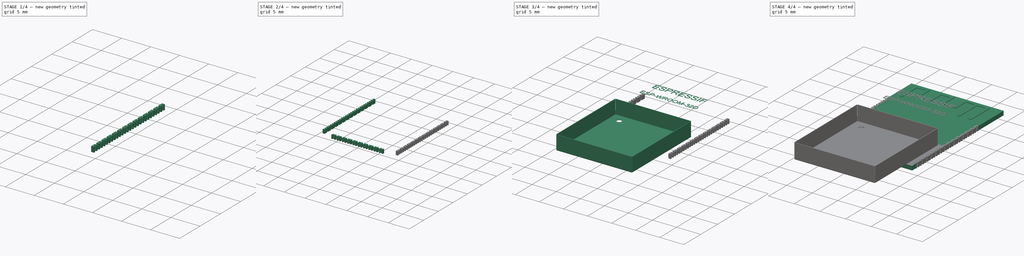
[diagram: build sequence overview — one tinted view per stage of 4, left to right]
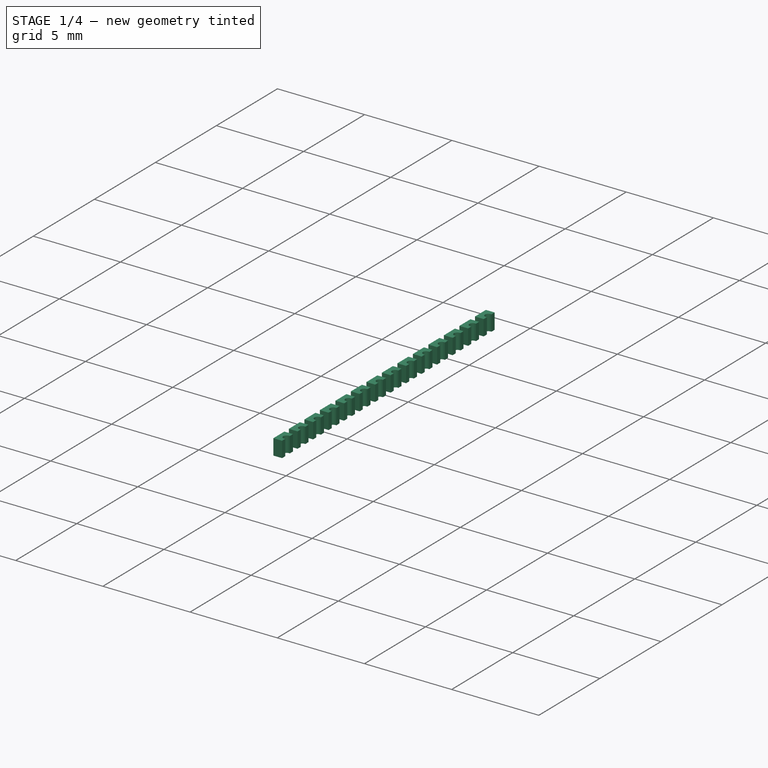
[diagram: stage 1 of 4 — iso view after this stage's code; geometry added in this stage tinted green]
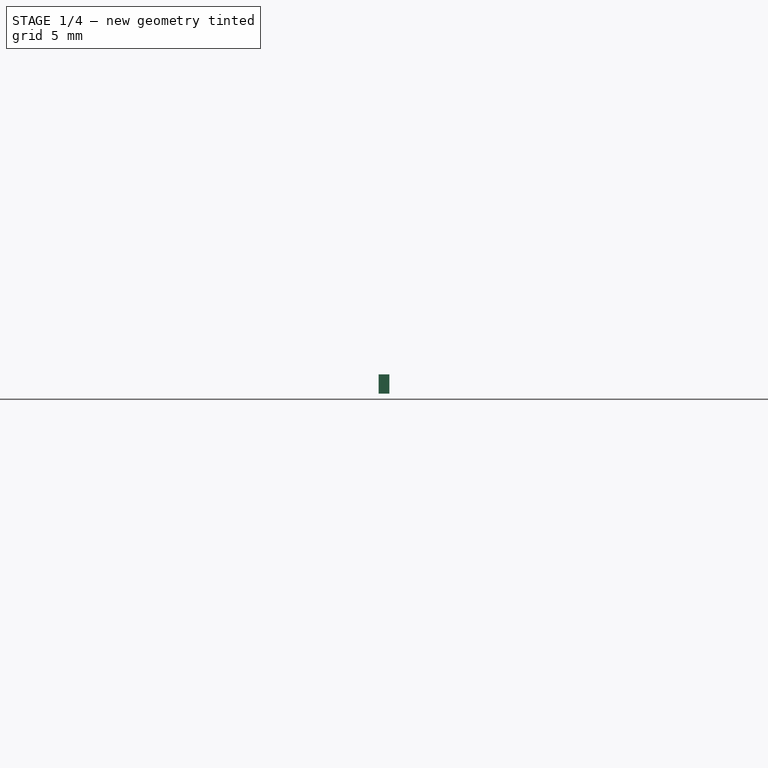
[diagram: stage 1 of 4 — front view after this stage's code; geometry added in this stage tinted green]
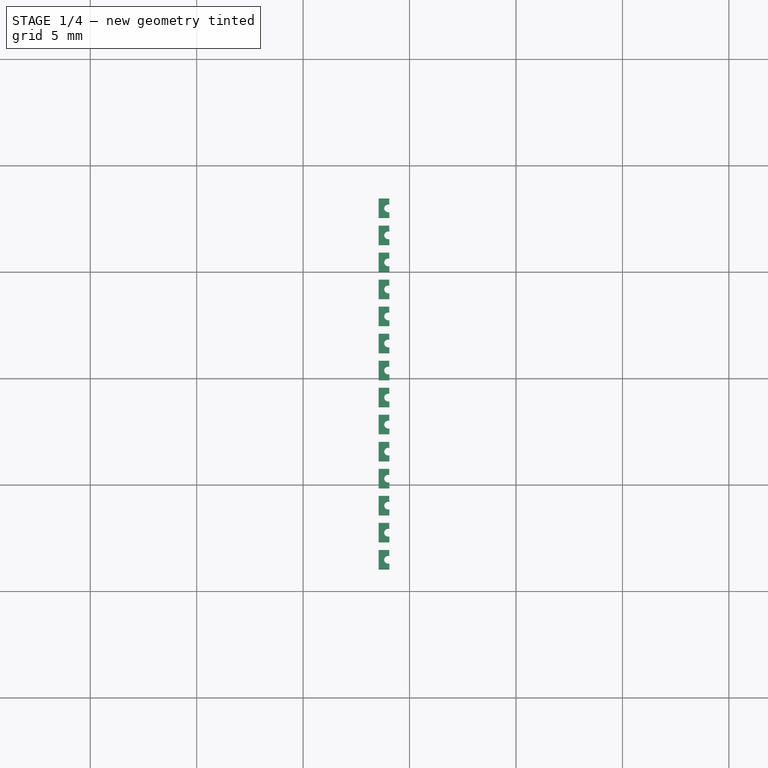
[diagram: stage 1 of 4 — top view after this stage's code; geometry added in this stage tinted green]
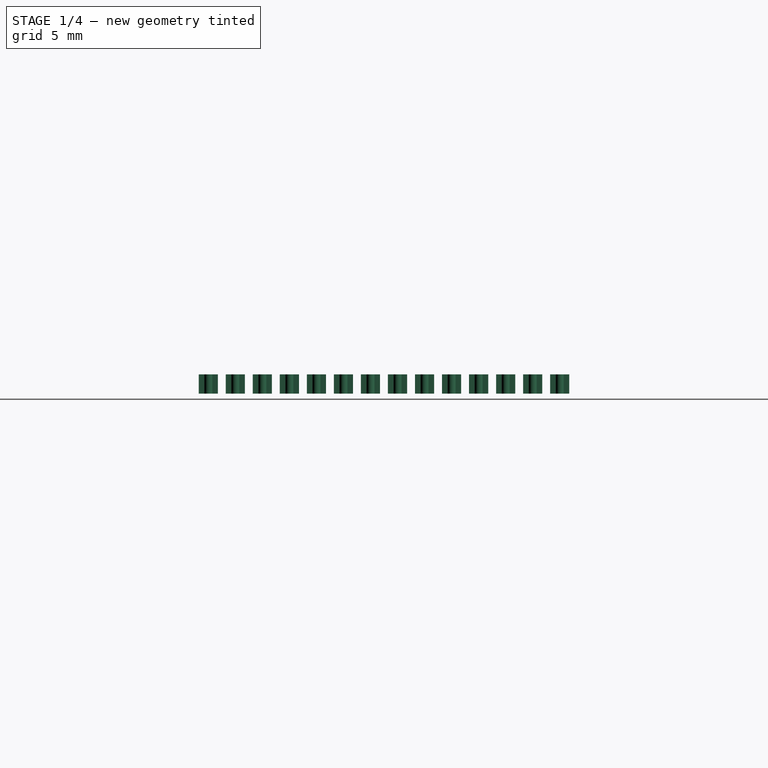
[diagram: stage 1 of 4 — right view after this stage's code; geometry added in this stage tinted green]
FCSTD DOCUMENT  (FreeCAD 1.0R39109 (Git))
Label: esp32_wr_32D_module
License: All rights reserved
LicenseURL: http://en.wikipedia.org/wiki/All_rights_reserved
objects: Sketcher::SketchObject×5, Part::FeaturePython×5, PartDesign::Pad×3, PartDesign::Body×3, PartDesign::Pocket×2, Part::Part2DObjectPython×2, Part::Extrusion×2, Image::ImagePlane×1, PartDesign::FeaturePython×1
note: 36 computed .brp shape members not serialized (recipe doc carries the construction recipe); baked Part::Feature solids carry a one-line shape summary decoded from their .brp

FEATURE [Sketcher::SketchObject] Sketch004
  ArcFitTolerance = 1e-06
  AttachmentSupport = -> [XY_Plane003]
  FullyConstrained = false
  MakeInternals = false
  MapMode = 5
  sketch-geometry (9):
    g0: LineSegment StartX=-6.16608 StartY=-0.05 StartZ=0 EndX=-5.90719 EndY=-0.05 EndZ=0
    g1: LineSegment StartX=-5.26608 StartY=-0.0452686 StartZ=0 EndX=-5.26608 EndY=0.45 EndZ=0
    g2: LineSegment StartX=-5.26608 StartY=0.45 StartZ=0 EndX=-6.16608 EndY=0.45 EndZ=0
    g3: LineSegment StartX=-6.16608 StartY=0.45 StartZ=0 EndX=-6.16608 EndY=-0.05 EndZ=0
    g4: LineSegment [constr] StartX=-5.71633 StartY=0 StartZ=0 EndX=-5.71904 EndY=0.515386 EndZ=0
    g5: ArcOfCircle CenterX=-5.71633 CenterY=0 CenterZ=0 NormalX=0 NormalY=0 NormalZ=1 AngleXU=0 Radius=0.190866 StartAngle=0 EndAngle=3.14159
    g6: LineSegment StartX=-5.52546 StartY=0 StartZ=0 EndX=-5.52546 EndY=-0.05 EndZ=0
    g7: LineSegment StartX=-5.90719 StartY=0 StartZ=0 EndX=-5.90719 EndY=-0.05 EndZ=0
    g8: LineSegment StartX=-5.52546 StartY=-0.05 StartZ=0 EndX=-5.26608 EndY=-0.0452686 EndZ=0
  constraints (24):
    c: Coincident(g8,g1)
    c: Coincident(g1,g2)
    c: Coincident(g2,g3)
    c: Coincident(g3,g0)
    c: Horizontal(g0)
    c: Horizontal(g2)
    c: Vertical(g1)
    c: Vertical(g3)
    c: DistanceX(g0,g8) = 0.9
    c: Symmetric(g0,g8,g4)
    c: DistanceY(g0,g4) = 0.05
    c: DistanceY(g3,g3) = 0.5
    c: PointOnObject(g4,g-1)
    c: Coincident(g5,g4)
    c: PointOnObject(g5,g-1)
    c: PointOnObject(g5,g-1)
    c: Coincident(g6,g5)
    c: PointOnObject(g6,g8)
    c: Vertical(g6)
    c: Coincident(g7,g5)
    c: Vertical(g7)
    c: Coincident(g0,g7)
    c: PointOnObject(g8,g6)
    c: Horizontal(g0,g6)
FEATURE [PartDesign::Pad] Pad002
  Direction = (0,0,1)
  Length = 0.05
  Length2 = 0.85
  Profile = -> Sketch004
  ReferenceAxis = -> Sketch004 [N_Axis]
  Refine = true
  Suppressed = false
  Type = 4
FEATURE [Part::FeaturePython] Clone001  label="pin_003"  # Draft clone (typed FeaturePython)
  AttacherType = Attacher::AttachEngine3D
  Fuse = false
  Objects = -> [Body003]
  Placement = pos=(9,7.2,0) rot=(0,0,1;1.5708rad)
  Scale = (1,1,1)
FEATURE [Part::FeaturePython] Array002  label="Pins_Right"  # Draft array (typed FeaturePython)
  AlwaysSyncPlacement = false
  Angle = 360
  ArrayType = 0
  Axis = (0,0,1)
  Base = -> Clone001
  Center = (0,0,0)
  Count = 14
  ExpandArray = false
  Fuse = false
  IntervalAxis = (0,0,0)
  IntervalX = (100,0,0)
  IntervalY = (0,1.27,0)
  IntervalZ = (0,0,100)
  NumberCircles = 3
  NumberPolar = 5
  NumberX = 1
  NumberY = 14
  NumberZ = 1
  PlacementList = 14 placements: arithmetic series from (9,7.2,0) step (0,1.27,0) to (9,23.71,0)
  RadialDistance = 50
  ScaleList = (14) [(1,1,1),(1,1,1),(1,1,1),(1,1,1),(1,1,1),(1,1,1),(1,1,1),(1,1,1),(1,1,1),(1,1,1),(1,1,1),(1,1,1),(1,1,1),(1,1,1)]
  Symmetry = 1
  TangentialDistance = 25
note: 2 file-system paths scrubbed to <path> (originals preserved in the JSON sidecar)
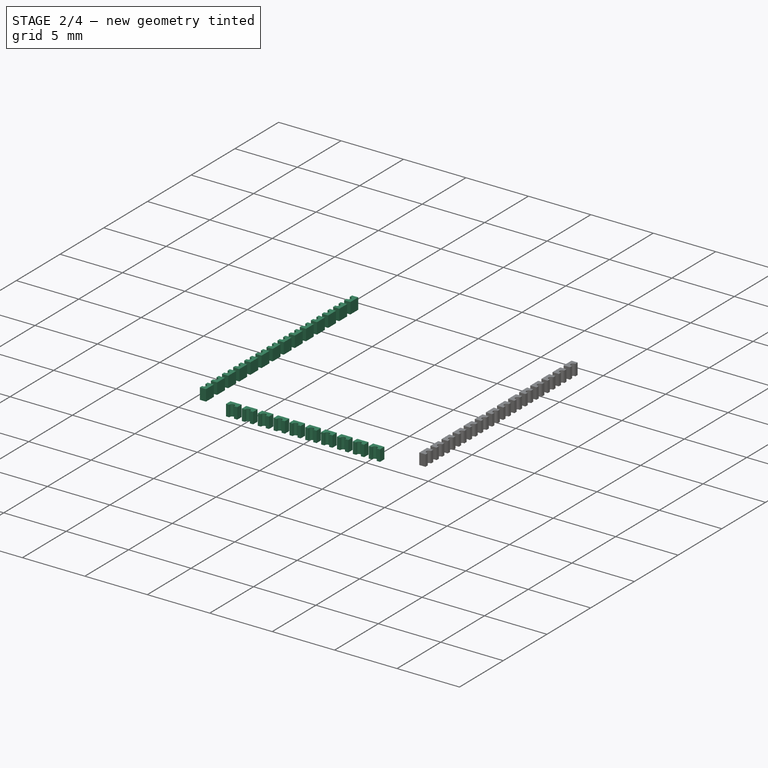
[diagram: stage 2 of 4 — iso view after this stage's code; geometry added in this stage tinted green]
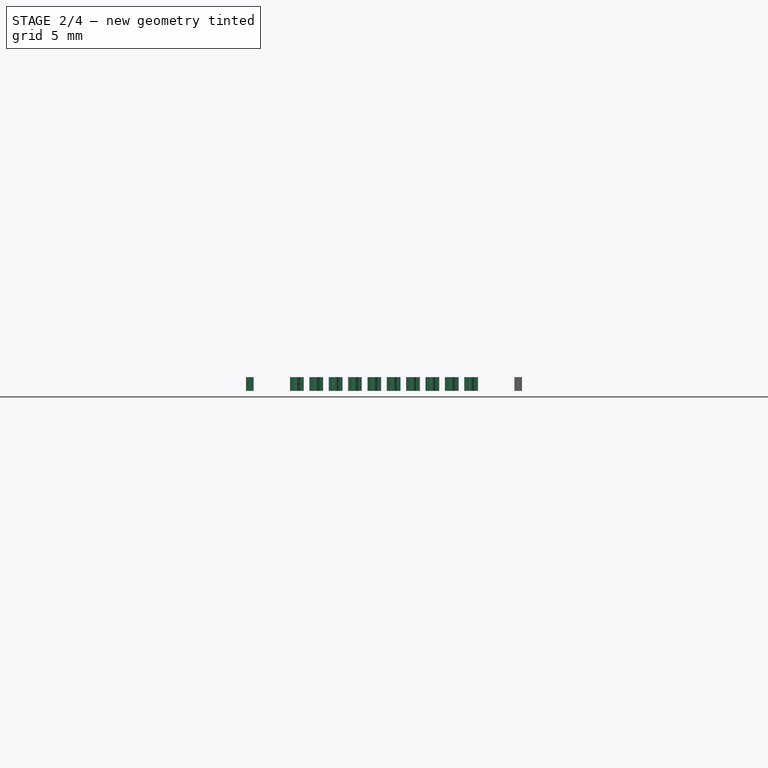
[diagram: stage 2 of 4 — front view after this stage's code; geometry added in this stage tinted green]
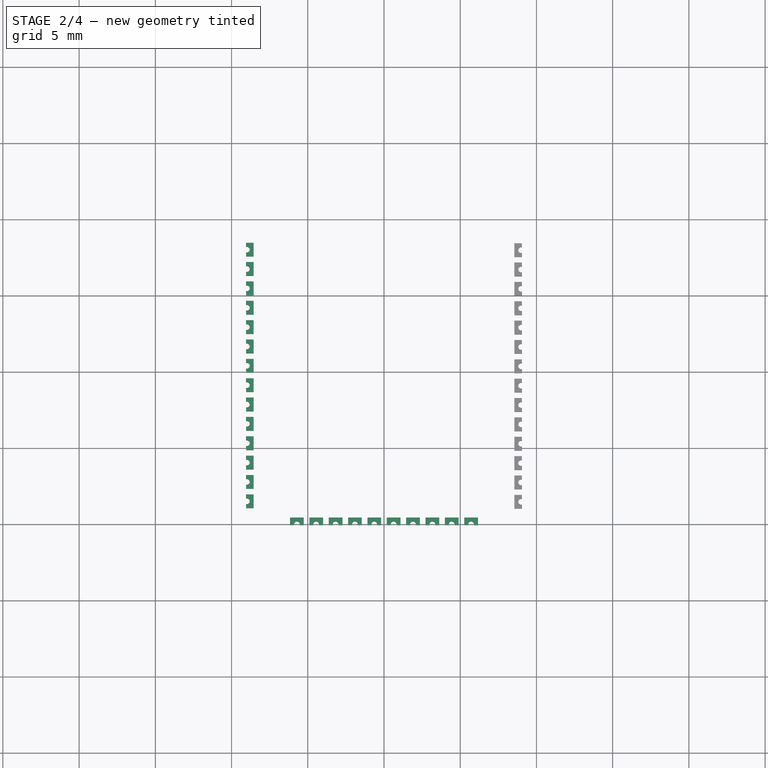
[diagram: stage 2 of 4 — top view after this stage's code; geometry added in this stage tinted green]
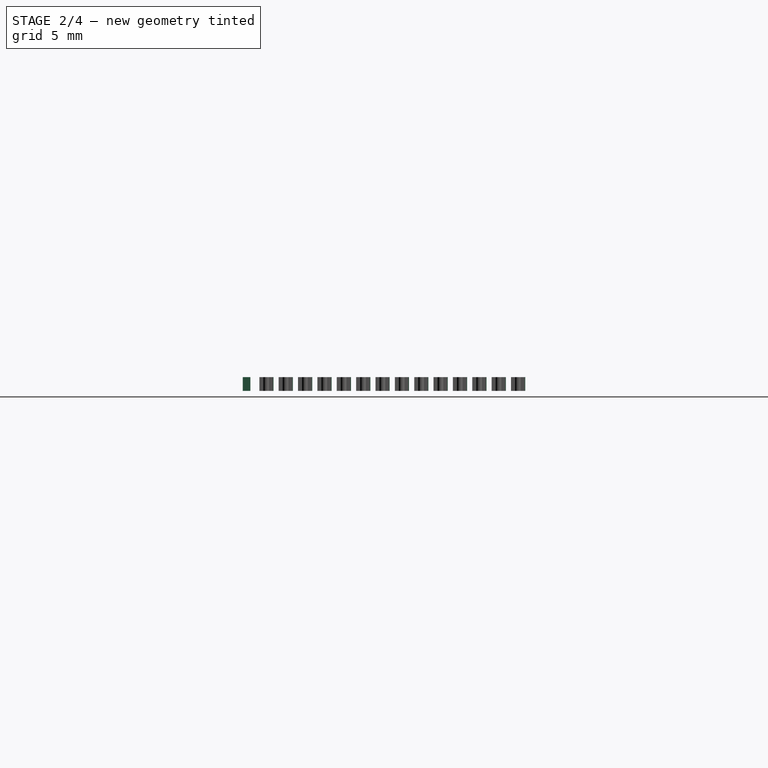
[diagram: stage 2 of 4 — right view after this stage's code; geometry added in this stage tinted green]
FEATURE [PartDesign::Body] Body003  label="pin_001"
  AllowCompound = false
  Group = -> [Sketch004,Pad002]
  Origin = -> Origin003
  Tip = -> Pad002
FEATURE [Part::FeaturePython] Array  label="Pins_H"  # Draft array (typed FeaturePython)
  AlwaysSyncPlacement = false
  Angle = 360
  ArrayType = 0
  Axis = (0,0,1)
  Base = -> Body003
  Center = (0,0,0)
  Count = 10
  ExpandArray = false
  Fuse = false
  IntervalAxis = (0,0,0)
  IntervalX = (1.27,0,0)
  IntervalY = (0,100,0)
  IntervalZ = (0,0,100)
  NumberCircles = 3
  NumberPolar = 5
  NumberX = 10
  NumberY = 1
  NumberZ = 1
  PlacementList = 10 placements: arithmetic series from (0,0,0) step (1.27,0,0) to (11.43,0,0)
  RadialDistance = 50
  ScaleList = (10) [(1,1,1),(1,1,1),(1,1,1),(1,1,1),(1,1,1),(1,1,1),(1,1,1),(1,1,1),(1,1,1),(1,1,1)]
  Symmetry = 1
  TangentialDistance = 25
FEATURE [Part::FeaturePython] Clone  label="pin_002"  # Draft clone (typed FeaturePython)
  AttacherType = Attacher::AttachEngine3D
  Fuse = false
  Objects = -> [Body003]
  Placement = pos=(-9,-4.2,0) rot=(0,0,1;4.71239rad)
  Scale = (1,1,1)
FEATURE [Part::FeaturePython] Array001  label="Pins_Left"  # Draft array (typed FeaturePython)
  AlwaysSyncPlacement = false
  Angle = 360
  ArrayType = 0
  Axis = (0,0,1)
  Base = -> Clone
  Center = (0,0,0)
  Count = 14
  ExpandArray = false
  Fuse = false
  IntervalAxis = (0,0,0)
  IntervalX = (100,0,0)
  IntervalY = (0,1.27,0)
  IntervalZ = (0,0,100)
  NumberCircles = 3
  NumberPolar = 5
  NumberX = 1
  NumberY = 14
  NumberZ = 1
  PlacementList = 14 placements: arithmetic series from (-9,-4.2,0) step (0,1.27,0) to (-9,12.31,0)
  RadialDistance = 50
  ScaleList = (14) [(1,1,1),(1,1,1),(1,1,1),(1,1,1),(1,1,1),(1,1,1),(1,1,1),(1,1,1),(1,1,1),(1,1,1),(1,1,1),(1,1,1),(1,1,1),(1,1,1)]
  Symmetry = 1
  TangentialDistance = 25
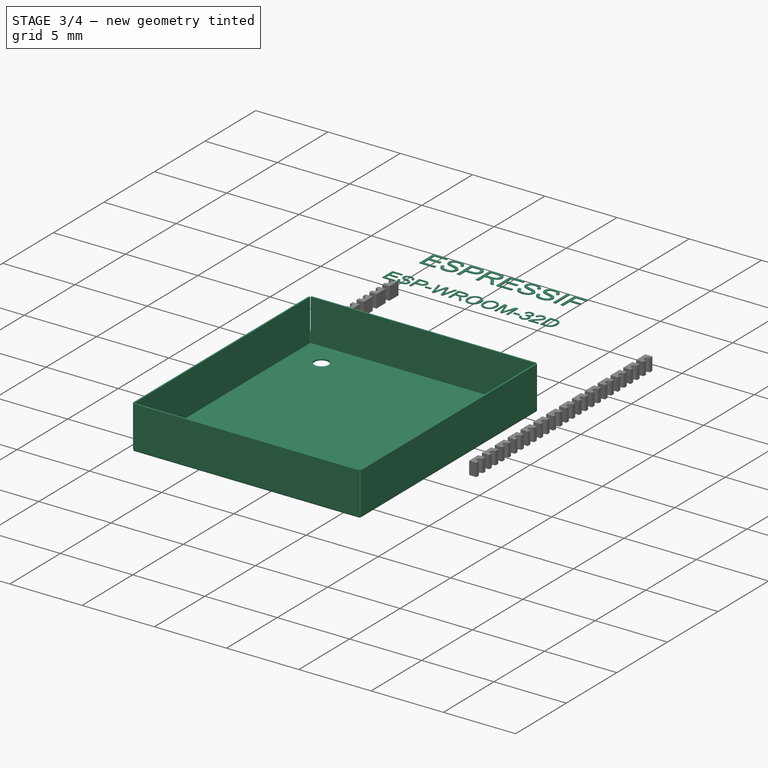
[diagram: stage 3 of 4 — iso view after this stage's code; geometry added in this stage tinted green]
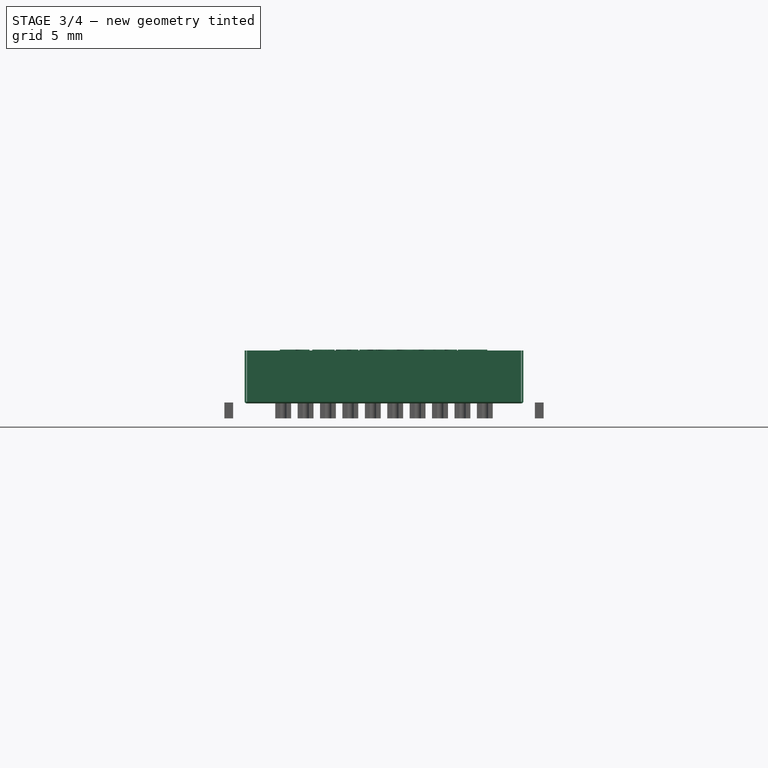
[diagram: stage 3 of 4 — front view after this stage's code; geometry added in this stage tinted green]
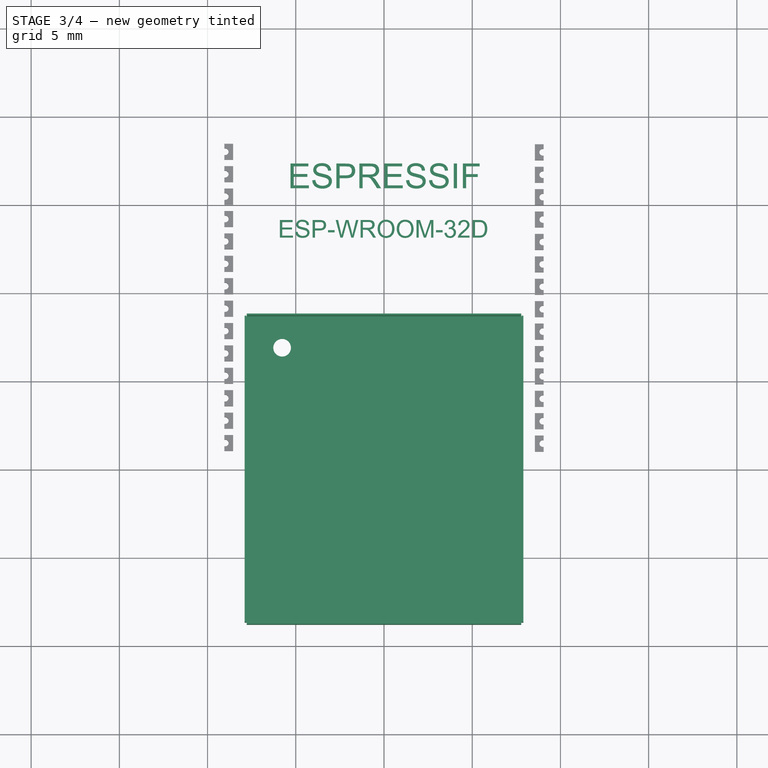
[diagram: stage 3 of 4 — top view after this stage's code; geometry added in this stage tinted green]
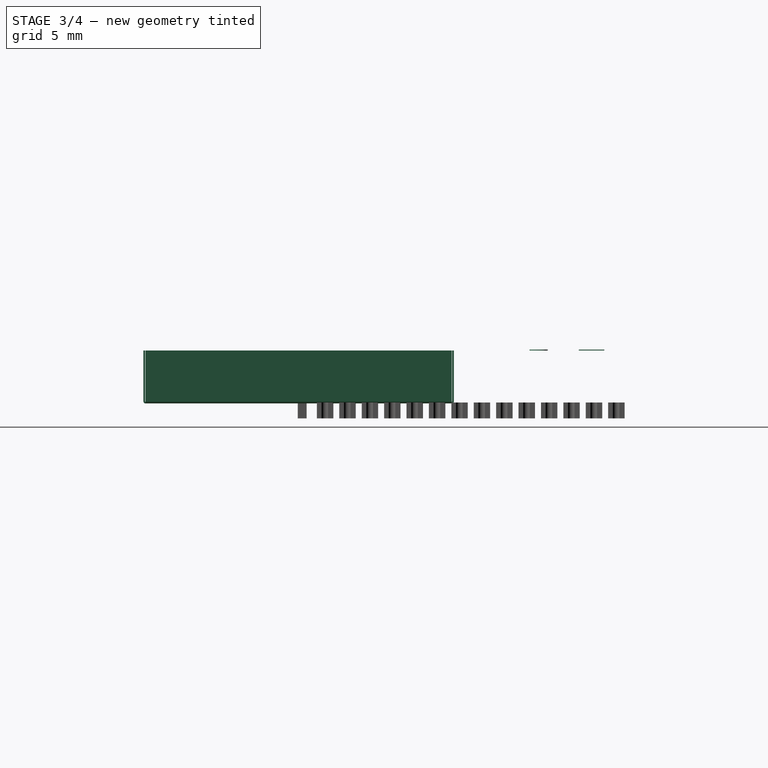
[diagram: stage 3 of 4 — right view after this stage's code; geometry added in this stage tinted green]
FEATURE [PartDesign::Body] Body  label="PCB_mince"
  AllowCompound = false
  Group = -> [Sketch,Pad,Sketch001,Pocket,Sketch002,Pad001]
  Origin = -> Origin
  Tip = -> Pad001
FEATURE [PartDesign::FeaturePython] BaseShape  # WARN: FeaturePython — macro-defined, semantics opaque (R4)
  Suppressed = false
  fillGaps = false
  flangeWidth = 0.001
  height = 3
  length = 15.8
  originLoc = 4
  radius = 0.02
  shapeType = 3
  thickness = 0.1
  width = 17.6
FEATURE [Sketcher::SketchObject] Sketch003
  ArcFitTolerance = 1e-06
  AttachmentSupport = -> [BaseShape]
  FullyConstrained = false
  MakeInternals = false
  MapMode = 5
  Placement = pos=(0,0,0) rot=(1,0,0;3.14159rad)
  sketch-geometry (1):
    g0: Circle CenterX=-5.7744 CenterY=-6.91063 CenterZ=0 NormalX=0 NormalY=0 NormalZ=1 AngleXU=0 Radius=0.5
  constraints (1):
    c: Diameter(g0) = 1
FEATURE [PartDesign::Pocket] Pocket001
  BaseFeature = -> BaseShape
  Direction = (0,0,1)
  Length = 0.5
  Length2 = 5
  Profile = -> Sketch003
  ReferenceAxis = -> Sketch003 [N_Axis]
  Refine = true
  Suppressed = false
  Type = 0
FEATURE [PartDesign::Body] Body001  label="Box"
  AllowCompound = false
  Group = -> [BaseShape,Sketch003,Pocket001]
  Origin = -> Origin001
  Placement = pos=(0,10,3) rot=(1,0,0;3.14159rad)
  Tip = -> Pocket001
FEATURE [Part::Part2DObjectPython] ShapeString  # Draft 2D object (typed FeaturePython)
  FontFile = <path>
  Fuse = false
  Justification = 6
  JustificationReference = 0
  KeepLeftMargin = false
  MakeFace = true
  ObliqueAngle = 0
  ScaleToSize = true
  Size = 1
  String = ESP-WROOM-32D
  Tracking = 0
FEATURE [Part::Extrusion] Extrude  label="Text_ESP32"
  Base = -> ShapeString
  Dir = (0,0,1)
  DirMode = 2
  FaceMakerClass = Part::FaceMakerBullseye
  FaceMakerMode = 3
  LengthFwd = 0.05
  LengthRev = 0
  Placement = pos=(-5.9,13.1,3) rot=(0,0,1;0rad)
  Solid = false
  Symmetric = false
FEATURE [Part::Part2DObjectPython] ShapeString001  # Draft 2D object (typed FeaturePython)
  FontFile = <path>
  Fuse = false
  Justification = 6
  JustificationReference = 0
  KeepLeftMargin = false
  MakeFace = true
  ObliqueAngle = 0
  ScaleToSize = true
  Size = 1.4
  String = ESPRESSIF
  Tracking = 0
FEATURE [Part::Extrusion] Extrude001  label="Text_Espressif"
  Base = -> ShapeString001
  Dir = (0,0,1)
  DirMode = 2
  FaceMakerClass = Part::FaceMakerBullseye
  FaceMakerMode = 3
  LengthFwd = 0.05
  LengthRev = 0
  Placement = pos=(-5.3,15.9,3) rot=(0,0,1;0rad)
  Solid = false
  Symmetric = false
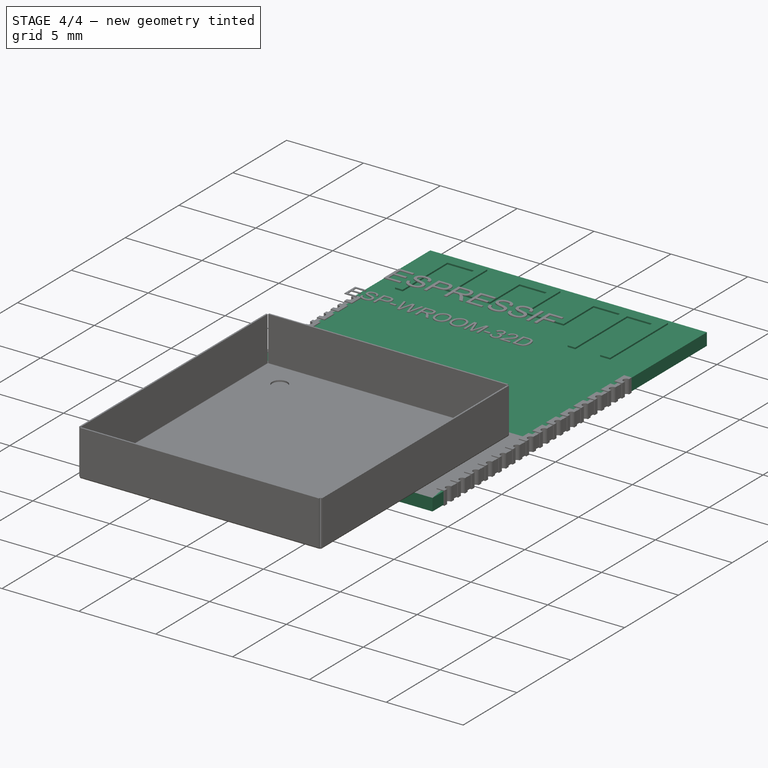
[diagram: stage 4 of 4 — iso view after this stage's code; geometry added in this stage tinted green]
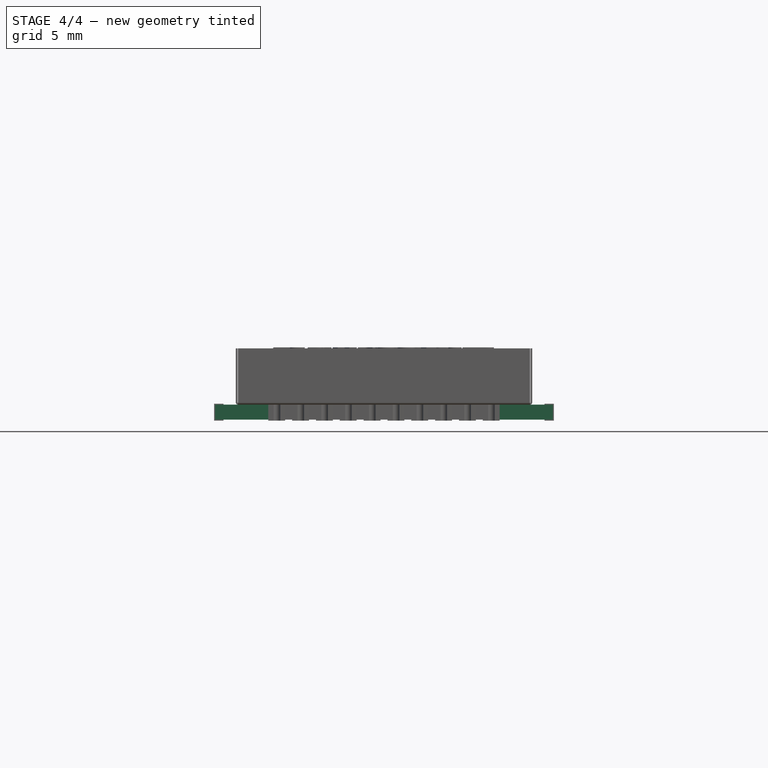
[diagram: stage 4 of 4 — front view after this stage's code; geometry added in this stage tinted green]
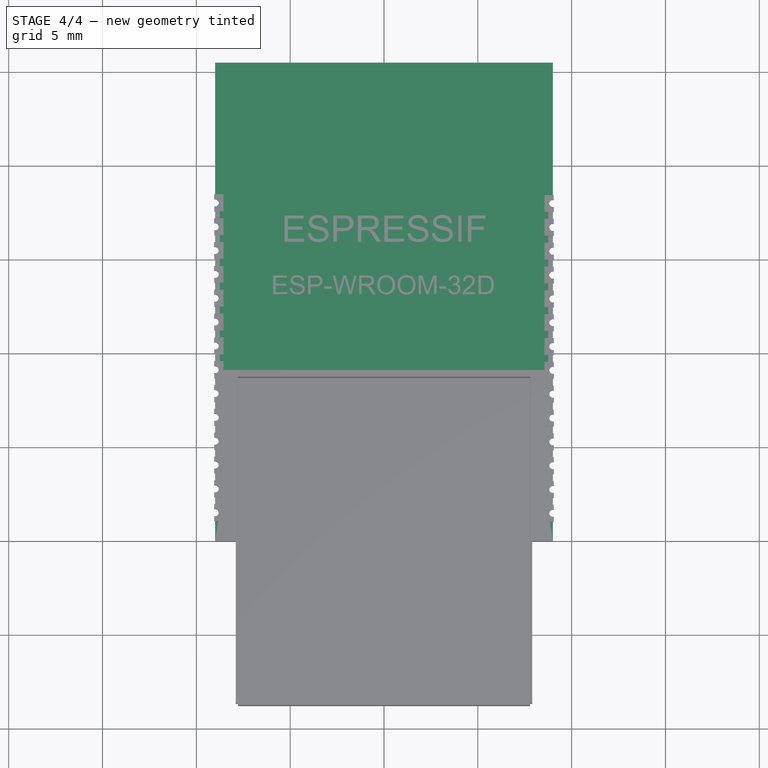
[diagram: stage 4 of 4 — top view after this stage's code; geometry added in this stage tinted green]
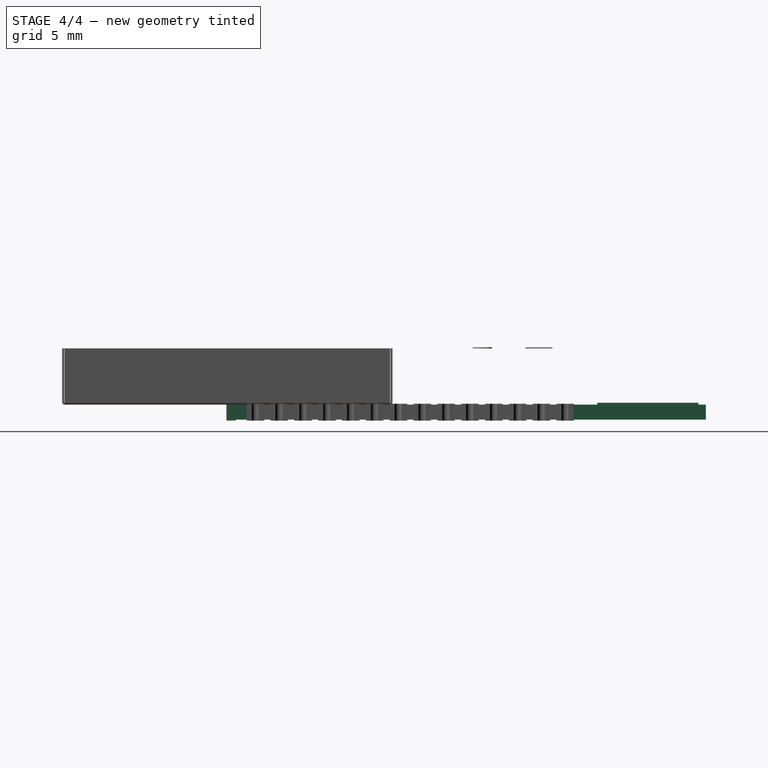
[diagram: stage 4 of 4 — right view after this stage's code; geometry added in this stage tinted green]
FEATURE [Sketcher::SketchObject] Sketch
  ArcFitTolerance = 1e-06
  AttachmentSupport = -> [XY_Plane]
  FullyConstrained = true
  MakeInternals = false
  MapMode = 5
  sketch-geometry (4):
    g0: LineSegment StartX=-9 StartY=0 StartZ=0 EndX=9 EndY=0 EndZ=0
    g1: LineSegment StartX=9 StartY=0 StartZ=0 EndX=9 EndY=25.5 EndZ=0
    g2: LineSegment StartX=9 StartY=25.5 StartZ=0 EndX=-9 EndY=25.5 EndZ=0
    g3: LineSegment StartX=-9 StartY=25.5 StartZ=0 EndX=-9 EndY=0 EndZ=0
  constraints (11):
    c: Coincident(g0,g1)
    c: Coincident(g1,g2)
    c: Coincident(g2,g3)
    c: Coincident(g3,g0)
    c: Horizontal(g0)
    c: Vertical(g1)
    c: Vertical(g3)
    c: PointOnObject(g0,g-1)
    c: DistanceX(g2,g2) = 18
    c: Symmetric(g2,g1,g-2)
    c: DistanceY(g3,g3) = 25.5
FEATURE [PartDesign::Pad] Pad
  Direction = (0,0,1)
  Length = 0.8
  Length2 = 10
  Profile = -> Sketch
  ReferenceAxis = -> Sketch [N_Axis]
  Refine = true
  Reversed = true
  Suppressed = false
  Type = 0
FEATURE [Sketcher::SketchObject] Sketch001
  ArcFitTolerance = 1e-06
  AttachmentSupport = -> [XY_Plane]
  ExternalGeometry = -> [Pad]
  FullyConstrained = false
  MakeInternals = false
  MapMode = 5
  sketch-geometry (38):
    g0: Circle CenterX=-5.715 CenterY=0 CenterZ=0 NormalX=0 NormalY=0 NormalZ=1 AngleXU=0 Radius=0.25
    g1: Circle CenterX=-4.445 CenterY=0 CenterZ=0 NormalX=0 NormalY=0 NormalZ=1 AngleXU=0 Radius=0.25
    g2: Circle CenterX=-3.175 CenterY=0 CenterZ=0 NormalX=0 NormalY=0 NormalZ=1 AngleXU=0 Radius=0.25
    g3: Circle CenterX=-1.905 CenterY=0 CenterZ=0 NormalX=0 NormalY=0 NormalZ=1 AngleXU=0 Radius=0.25
    g4: Circle CenterX=-0.635 CenterY=0 CenterZ=0 NormalX=0 NormalY=0 NormalZ=1 AngleXU=0 Radius=0.25
    g5: Circle CenterX=0.635 CenterY=0 CenterZ=0 NormalX=0 NormalY=0 NormalZ=1 AngleXU=0 Radius=0.25
    g6: Circle CenterX=1.905 CenterY=0 CenterZ=0 NormalX=0 NormalY=0 NormalZ=1 AngleXU=0 Radius=0.25
    g7: Circle CenterX=3.175 CenterY=0 CenterZ=0 NormalX=0 NormalY=0 NormalZ=1 AngleXU=0 Radius=0.25
    g8: Circle CenterX=4.445 CenterY=0 CenterZ=0 NormalX=0 NormalY=0 NormalZ=1 AngleXU=0 Radius=0.25
    g9: Circle CenterX=5.715 CenterY=0 CenterZ=0 NormalX=0 NormalY=0 NormalZ=1 AngleXU=0 Radius=0.25
    g10: Circle CenterX=-9 CenterY=1.5 CenterZ=0 NormalX=0 NormalY=0 NormalZ=1 AngleXU=0 Radius=0.25
    g11: Circle CenterX=-9 CenterY=2.77 CenterZ=0 NormalX=0 NormalY=0 NormalZ=1 AngleXU=0 Radius=0.25
    g12: Circle CenterX=-9 CenterY=4.04 CenterZ=0 NormalX=0 NormalY=0 NormalZ=1 AngleXU=0 Radius=0.25
    g13: Circle CenterX=-9 CenterY=5.31 CenterZ=0 NormalX=0 NormalY=0 NormalZ=1 AngleXU=0 Radius=0.25
    g14: Circle CenterX=-9 CenterY=6.58 CenterZ=0 NormalX=0 NormalY=0 NormalZ=1 AngleXU=0 Radius=0.25
    g15: Circle CenterX=-9 CenterY=7.85 CenterZ=0 NormalX=0 NormalY=0 NormalZ=1 AngleXU=0 Radius=0.25
    g16: Circle CenterX=-9 CenterY=9.12 CenterZ=0 NormalX=0 NormalY=0 NormalZ=1 AngleXU=0 Radius=0.25
    g17: Circle CenterX=-9 CenterY=10.39 CenterZ=0 NormalX=0 NormalY=0 NormalZ=1 AngleXU=0 Radius=0.25
    g18: Circle CenterX=-9 CenterY=11.66 CenterZ=0 NormalX=0 NormalY=0 NormalZ=1 AngleXU=0 Radius=0.25
    g19: Circle CenterX=-9 CenterY=12.93 CenterZ=0 NormalX=0 NormalY=0 NormalZ=1 AngleXU=0 Radius=0.25
    g20: Circle CenterX=-9 CenterY=14.2 CenterZ=0 NormalX=0 NormalY=0 NormalZ=1 AngleXU=0 Radius=0.25
    g21: Circle CenterX=-9 CenterY=15.47 CenterZ=0 NormalX=0 NormalY=0 NormalZ=1 AngleXU=0 Radius=0.25
    g22: Circle CenterX=-9 CenterY=16.74 CenterZ=0 NormalX=0 NormalY=0 NormalZ=1 AngleXU=0 Radius=0.25
    g23: Circle CenterX=-9 CenterY=18.01 CenterZ=0 NormalX=0 NormalY=0 NormalZ=1 AngleXU=0 Radius=0.25
    g24: Circle CenterX=9 CenterY=1.5 CenterZ=0 NormalX=0 NormalY=0 NormalZ=1 AngleXU=0 Radius=0.25
    g25: Circle CenterX=9 CenterY=2.77 CenterZ=0 NormalX=0 NormalY=0 NormalZ=1 AngleXU=0 Radius=0.25
    g26: Circle CenterX=9 CenterY=4.04 CenterZ=0 NormalX=0 NormalY=0 NormalZ=1 AngleXU=0 Radius=0.25
    g27: Circle CenterX=9 CenterY=5.31 CenterZ=0 NormalX=0 NormalY=0 NormalZ=1 AngleXU=0 Radius=0.25
    g28: Circle CenterX=9 CenterY=6.58 CenterZ=0 NormalX=0 NormalY=0 NormalZ=1 AngleXU=0 Radius=0.25
    g29: Circle CenterX=9 CenterY=7.85 CenterZ=0 NormalX=0 NormalY=0 NormalZ=1 AngleXU=0 Radius=0.25
    g30: Circle CenterX=9 CenterY=9.12 CenterZ=0 NormalX=0 NormalY=0 NormalZ=1 AngleXU=0 Radius=0.25
    g31: Circle CenterX=9 CenterY=10.39 CenterZ=0 NormalX=0 NormalY=0 NormalZ=1 AngleXU=0 Radius=0.25
    g32: Circle CenterX=9 CenterY=11.66 CenterZ=0 NormalX=0 NormalY=0 NormalZ=1 AngleXU=0 Radius=0.25
    g33: Circle CenterX=9 CenterY=12.93 CenterZ=0 NormalX=0 NormalY=0 NormalZ=1 AngleXU=0 Radius=0.25
    g34: Circle CenterX=9 CenterY=14.2 CenterZ=0 NormalX=0 NormalY=0 NormalZ=1 AngleXU=0 Radius=0.25
    g35: Circle CenterX=9 CenterY=15.47 CenterZ=0 NormalX=0 NormalY=0 NormalZ=1 AngleXU=0 Radius=0.25
    g36: Circle CenterX=9 CenterY=16.74 CenterZ=0 NormalX=0 NormalY=0 NormalZ=1 AngleXU=0 Radius=0.25
    g37: Circle CenterX=9 CenterY=18.01 CenterZ=0 NormalX=0 NormalY=0 NormalZ=1 AngleXU=0 Radius=0.25
  constraints (37):
    c: PointOnObject(g0,g-1)
    c: Diameter(g0) = 0.5
    c: DistanceX(g0,g-1) = 5.715
    c: PointOnObject(g10,g-3)
    c: Diameter(g10) = 0.5
    c: DistanceY(g-3,g10) = 1.5
    c: Diameter(g11) = 0.5
    c: Diameter(g12) = 0.5
    c: Diameter(g13) = 0.5
    c: Diameter(g14) = 0.5
    c: Diameter(g15) = 0.5
    c: Diameter(g16) = 0.5
    c: Diameter(g17) = 0.5
    c: Diameter(g18) = 0.5
    c: Diameter(g19) = 0.5
    c: Diameter(g20) = 0.5
    c: Diameter(g21) = 0.5
    c: Diameter(g22) = 0.5
    c: Diameter(g23) = 0.5
    c: Diameter(g24) = 0.5
    c: Diameter(g25) = 0.5
    c: Diameter(g26) = 0.5
    c: Diameter(g27) = 0.5
    c: Diameter(g28) = 0.5
    c: Diameter(g29) = 0.5
    c: Diameter(g30) = 0.5
    c: Diameter(g31) = 0.5
    c: Diameter(g32) = 0.5
    c: Diameter(g33) = 0.5
    c: Diameter(g34) = 0.5
    c: Diameter(g35) = 0.5
    c: Diameter(g36) = 0.5
    c: Diameter(g37) = 0.5
    c: Equal(g3, g5-g9) x5
    c: Diameter(g3) = 0.5
    c: Equal(g1,g2)
    c: Equal(g2,g3)
FEATURE [PartDesign::Pocket] Pocket
  BaseFeature = -> Pad
  Direction = (0,0,-1)
  Length = 5
  Length2 = 5
  Profile = -> Sketch001
  ReferenceAxis = -> Sketch001 [N_Axis]
  Refine = true
  Suppressed = false
  Type = 0
FEATURE [Sketcher::SketchObject] Sketch002
  ArcFitTolerance = 1e-06
  AttachmentSupport = -> [XY_Plane]
  ExternalGeometry = -> [Pocket]
  FullyConstrained = false
  MakeInternals = false
  MapMode = 5
  sketch-geometry (31):
    g0: LineSegment [constr] StartX=-9 StartY=25.1 StartZ=0 EndX=9 EndY=25.1 EndZ=0
    g1: LineSegment [constr] StartX=-9 StartY=19.5 StartZ=0 EndX=9 EndY=19.5 EndZ=0
    g2: LineSegment [constr] StartX=-9 StartY=21.7946 StartZ=0 EndX=9 EndY=21.7946 EndZ=0
    g3: LineSegment StartX=6.75033 StartY=19.7165 StartZ=0 EndX=6.75033 EndY=25.1 EndZ=0
    g4: LineSegment StartX=6.75033 StartY=25.1 StartZ=0 EndX=1.77515 EndY=25.1 EndZ=0
    g5: LineSegment StartX=1.77515 StartY=25.1 StartZ=0 EndX=1.77515 EndY=22.3528 EndZ=0
    g6: LineSegment StartX=1.77515 StartY=22.3528 StartZ=0 EndX=-0.253976 EndY=22.3528 EndZ=0
    g7: LineSegment StartX=-0.253976 StartY=25.1 StartZ=0 EndX=-3.02183 EndY=25.1 EndZ=0
    g8: LineSegment StartX=-3.02183 StartY=25.1 StartZ=0 EndX=-3.02183 EndY=22.3528 EndZ=0
    g9: LineSegment StartX=-3.02183 StartY=22.3528 StartZ=0 EndX=-5.0096 EndY=22.3528 EndZ=0
    g10: LineSegment StartX=-5.0096 StartY=22.3528 StartZ=0 EndX=-5.0096 EndY=25.1 EndZ=0
    g11: LineSegment StartX=-5.0096 StartY=25.1 StartZ=0 EndX=-7.7361 EndY=25.1 EndZ=0
    g12: LineSegment StartX=-7.7361 StartY=25.1 StartZ=0 EndX=-7.7361 EndY=20.4195 EndZ=0
    g13: LineSegment StartX=-7.7361 StartY=20.4195 StartZ=0 EndX=-7.2361 EndY=20.4195 EndZ=0
    g14: LineSegment StartX=-7.2361 StartY=20.4195 StartZ=0 EndX=-7.2361 EndY=24.5755 EndZ=0
    g15: LineSegment StartX=-7.2361 StartY=24.5755 StartZ=0 EndX=-5.5096 EndY=24.5755 EndZ=0
    g16: LineSegment StartX=-5.5096 StartY=24.5755 StartZ=0 EndX=-5.5096 EndY=21.7946 EndZ=0
    g17: LineSegment StartX=-5.5096 StartY=21.7946 StartZ=0 EndX=-2.52183 EndY=21.7946 EndZ=0
    g18: LineSegment StartX=-2.52183 StartY=21.7946 StartZ=0 EndX=-2.52183 EndY=24.5445 EndZ=0
    g19: LineSegment StartX=-2.52183 StartY=24.5445 StartZ=0 EndX=-0.753976 EndY=24.5445 EndZ=0
    g20: LineSegment StartX=-0.753976 StartY=24.5445 StartZ=0 EndX=-0.753976 EndY=21.7946 EndZ=0
    g21: LineSegment StartX=-0.753976 StartY=21.7946 StartZ=0 EndX=2.27515 EndY=21.7946 EndZ=0
    g22: LineSegment StartX=2.27515 StartY=21.7946 StartZ=0 EndX=2.27515 EndY=24.5755 EndZ=0
    g23: LineSegment StartX=2.27515 StartY=24.5755 StartZ=0 EndX=3.98755 EndY=24.5755 EndZ=0
    g24: LineSegment StartX=3.98755 StartY=24.5755 StartZ=0 EndX=3.98755 EndY=19.7165 EndZ=0
    g25: LineSegment StartX=3.98755 StartY=19.7165 StartZ=0 EndX=4.48755 EndY=19.7165 EndZ=0
    g26: LineSegment StartX=4.48755 StartY=19.7165 StartZ=0 EndX=4.48755 EndY=24.5445 EndZ=0
    g27: LineSegment StartX=4.48755 StartY=24.5445 StartZ=0 EndX=6.10033 EndY=24.5445 EndZ=0
    g28: LineSegment StartX=6.10033 StartY=24.5445 StartZ=0 EndX=6.10033 EndY=19.7165 EndZ=0
    g29: LineSegment StartX=6.10033 StartY=19.7165 StartZ=0 EndX=6.75033 EndY=19.7165 EndZ=0
    g30: LineSegment StartX=-0.253976 StartY=25.1 StartZ=0 EndX=-0.253976 EndY=22.3528 EndZ=0
  constraints (81):
    c: PointOnObject(g0,g-3)
    c: PointOnObject(g0,g-4)
    c: Horizontal(g0)
    c: PointOnObject(g1,g-3)
    c: PointOnObject(g1,g-4)
    c: Horizontal(g1)
    c: DistanceY(g1,g-4) = 6
    c: PointOnObject(g2,g-3)
    c: PointOnObject(g2,g-4)
    c: Horizontal(g2)
    c: PointOnObject(g3,g0)
    c: Vertical(g3)
    c: Coincident(g3,g4)
    c: PointOnObject(g4,g0)
    c: Coincident(g4,g5)
    c: Vertical(g5)
    c: Coincident(g5,g6)
    c: Horizontal(g6)
    c: PointOnObject(g7,g0)
    c: Coincident(g7,g8)
    c: Vertical(g8)
    c: Coincident(g8,g9)
    c: Horizontal(g9)
    c: Coincident(g9,g10)
    c: PointOnObject(g10,g0)
    c: Vertical(g10)
    c: Coincident(g10,g11)
    c: PointOnObject(g11,g0)
    c: Coincident(g11,g12)
    c: Vertical(g12)
    c: Coincident(g12,g13)
    c: Horizontal(g13)
    c: Coincident(g13,g14)
    c: Vertical(g14)
    c: Coincident(g14,g15)
    c: Horizontal(g15)
    c: Coincident(g15,g16)
    c: PointOnObject(g16,g2)
    c: Vertical(g16)
    c: Coincident(g16,g17)
    c: PointOnObject(g17,g2)
    c: Coincident(g17,g18)
    c: Vertical(g18)
    c: Coincident(g18,g19)
    c: Horizontal(g19)
    c: Coincident(g19,g20)
    c: PointOnObject(g20,g2)
    c: Coincident(g20,g21)
    c: PointOnObject(g21,g2)
    c: Coincident(g21,g22)
    c: Vertical(g22)
    c: Coincident(g22,g23)
    c: Horizontal(g23)
    c: Coincident(g23,g24)
    c: Vertical(g24)
    c: Coincident(g24,g25)
    c: Horizontal(g25)
    c: Coincident(g25,g26)
    c: Vertical(g26)
    c: Coincident(g26,g27)
    c: Horizontal(g27)
    c: Coincident(g27,g28)
    c: Vertical(g28)
    c: Coincident(g28,g29)
    c: Coincident(g29,g3)
    c: DistanceY(g0,g-4) = 0.4
    c: PointOnObject(g7,g0)
    c: Coincident(g30,g7)
    c: Coincident(g30,g6)
    c: Vertical(g30)
    c: Vertical(g20)
    c: Horizontal(g8,g6)
    c: DistanceX(g13,g13) = 0.5
    c: DistanceX(g15,g10) = 0.5
    c: DistanceX(g7,g18) = 0.5
    c: DistanceX(g19,g7) = 0.5
    c: DistanceX(g4,g22) = 0.5
    c: DistanceX(g23,g26) = 0.5
    c: Horizontal(g29)
    c: Horizontal(g28,g25)
    c: DistanceX(g29,g29) = 0.65
FEATURE [Image::ImagePlane] esp_wroom_32
  Placement = pos=(0,12.7,0) rot=(0,0,1;0rad)
  XSize = 18.3
  YSize = 26
FEATURE [PartDesign::Pad] Pad001
  BaseFeature = -> Pocket
  Direction = (0,0,1)
  Length = 0.1
  Length2 = 10
  Profile = -> Sketch002
  ReferenceAxis = -> Sketch002 [N_Axis]
  Refine = true
  Suppressed = false
  Type = 0
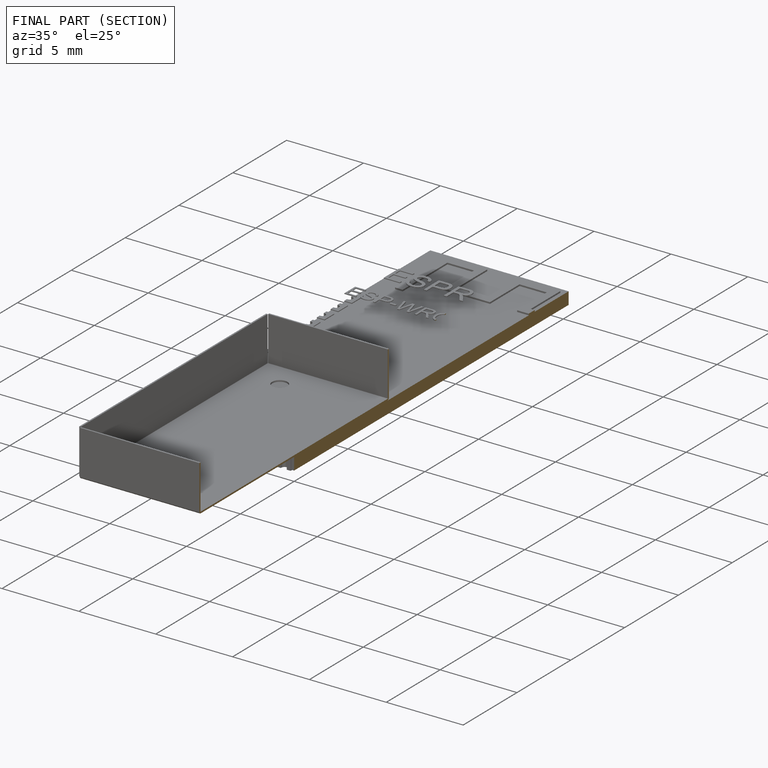
[diagram: finished part — half-section view (interior)]
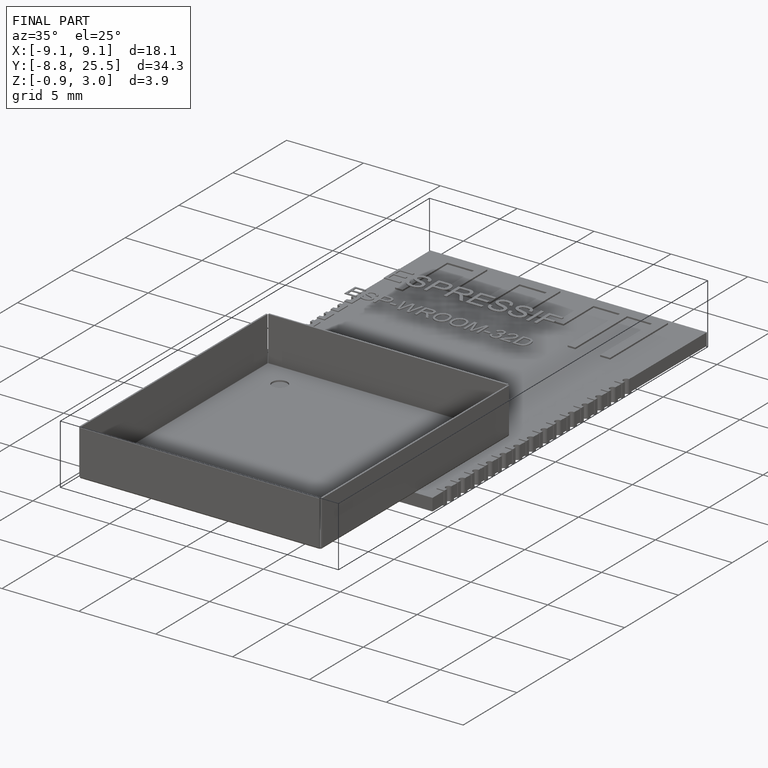
[diagram: finished part — iso view with bounding-box wireframe]
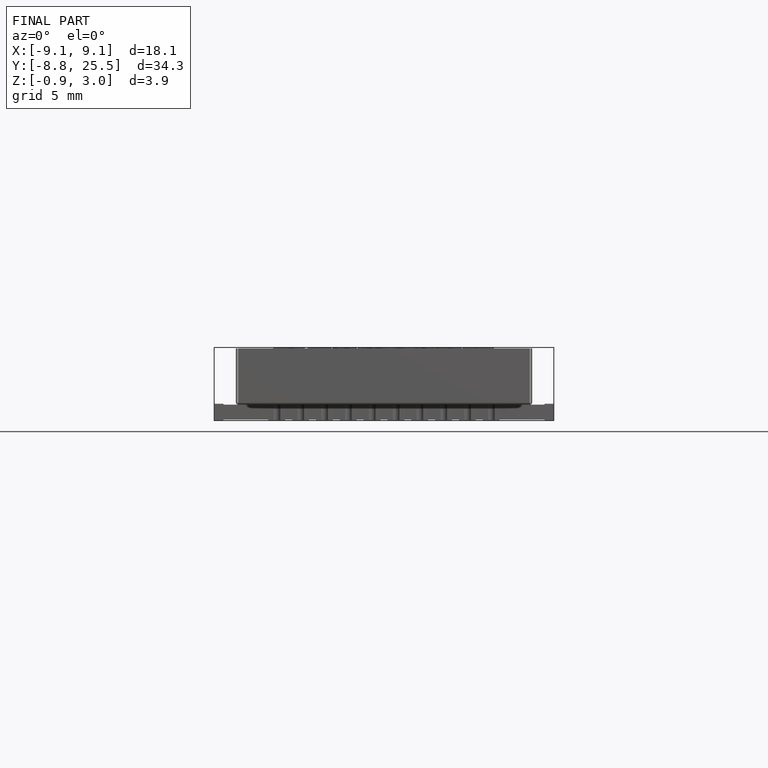
[diagram: finished part — front view with bounding-box wireframe]
